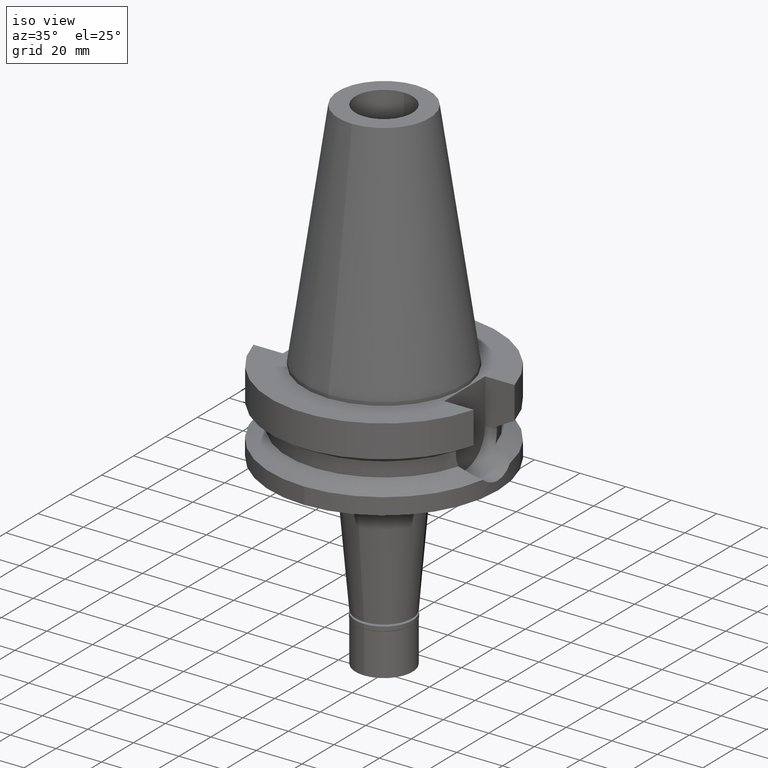
[diagram: clean part render]
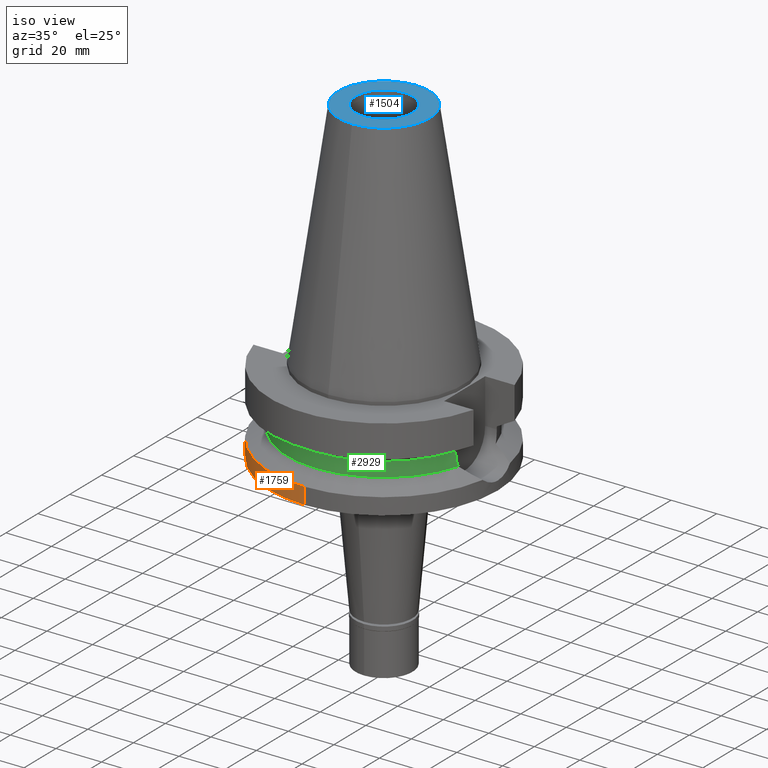
[diagram: same view with three faces highlighted in distinct colors, each labeled with its STEP entity id]
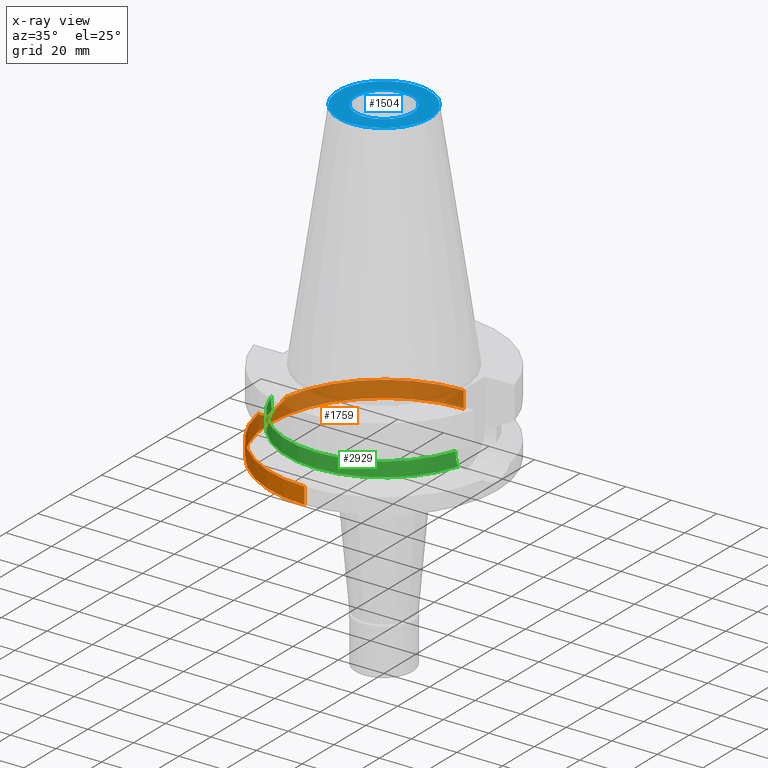
[diagram: x-ray of the same camera — body ghosted, the three highlighted faces saturated]
A machine part, iso view with three faces highlighted in distinct colors.
The next image is the same camera in x-ray (body ghosted, the three faces saturated) — at least one of them is partly hidden behind the body in this view.
Their STEP definitions:

[orange] entity #1759 — the highlighted cylindrical surface (partial cylindrical patch) has radius 50 mm, axis along (0, 0, -1).
#47 = CIRCLE ( 'NONE', #2730, 50.00000000000000000 ) ;
#107 = CARTESIAN_POINT ( 'NONE',  ( -49.78664829406391590, 4.613910500151858329, -33.14313281058769434 ) ) ;
#125 = CARTESIAN_POINT ( 'NONE',  ( -49.64854071968354532, 5.927764156362067105, -32.55772659336890484 ) ) ;
#132 = EDGE_CURVE ( 'NONE', #1580, #335, #47, .T. ) ;
#138 = CARTESIAN_POINT ( 'NONE',  ( -49.38339985389389852, -7.859960507564057508, -31.35852461874956276 ) ) ;
#164 = CARTESIAN_POINT ( 'NONE',  ( -49.96617104581996216, 1.860771087433597426, -33.87050983912064339 ) ) ;
#223 = CIRCLE ( 'NONE', #2709, 50.00000000000000000 ) ;
#266 = CYLINDRICAL_SURFACE ( 'NONE', #2376, 50.00000000000000000 ) ;
#330 = VERTEX_POINT ( 'NONE', #1473 ) ;
#335 = VERTEX_POINT ( 'NONE', #473 ) ;
#339 = CARTESIAN_POINT ( 'NONE',  ( -49.26250064874000145, 8.556052234130000045, -30.73730776426999967 ) ) ;
#342 = CARTESIAN_POINT ( 'NONE',  ( -49.52321424474452982, 6.888848416740521508, -31.99799020663238025 ) ) ;
#350 = DIRECTION ( 'NONE',  ( 0.0000000000000000000, -1.000000000000000000, 0.0000000000000000000 ) ) ;
#356 = CARTESIAN_POINT ( 'NONE',  ( -49.54039264356965333, 6.763925164262532874, -32.07587820822468672 ) ) ;
#363 = CARTESIAN_POINT ( 'NONE',  ( -49.86272838369370675, 3.780421414786224510, -33.45811166536216064 ) ) ;
#375 = CARTESIAN_POINT ( 'NONE',  ( -49.55450159062220905, -6.659714905577538424, -32.13957334196853566 ) ) ;
#402 = CARTESIAN_POINT ( 'NONE',  ( -49.99946306006298613, -0.7715022172390856303, -33.99825010080720489 ) ) ;
#473 = CARTESIAN_POINT ( 'NONE',  ( 0.0000000000000000000, 50.00000000000000000, -30.73730776426999967 ) ) ;
#580 = CARTESIAN_POINT ( 'NONE',  ( -49.45233892297569156, 7.380538404402726016, -31.67091163835234724 ) ) ;
#586 = CARTESIAN_POINT ( 'NONE',  ( -49.72632807619970663, 5.226216969083754549, -32.89072053926888373 ) ) ;
#602 = CARTESIAN_POINT ( 'NONE',  ( -49.86808978796835845, -3.630590269449405660, -33.47804037524767296 ) ) ;
#617 = CARTESIAN_POINT ( 'NONE',  ( -49.59474392502836082, -6.354017035980056072, -32.31992421982980090 ) ) ;
#629 = CARTESIAN_POINT ( 'NONE',  ( -49.79238540805609148, 4.551552570675347908, -33.16690600826707680 ) ) ;
#746 = EDGE_LOOP ( 'NONE', ( #2760, #1280, #2161, #2471, #1073, #2567 ) ) ;
#754 = DIRECTION ( 'NONE',  ( -0.9852500129747439050, 0.1711210446826074982, 0.0000000000000000000 ) ) ;
#759 = LINE ( 'NONE', #1041, #1777 ) ;
#771 = DIRECTION ( 'NONE',  ( 0.0000000000000000000, 0.0000000000000000000, -1.000000000000000000 ) ) ;
#772 = DIRECTION ( 'NONE',  ( 0.0000000000000000000, 0.0000000000000000000, -1.000000000000000000 ) ) ;
#832 = DIRECTION ( 'NONE',  ( 0.0000000000000000000, 0.0000000000000000000, -1.000000000000000000 ) ) ;
#846 = CARTESIAN_POINT ( 'NONE',  ( -49.91456184022994336, 3.009912612553126365, -33.66672019711109698 ) ) ;
#847 = CARTESIAN_POINT ( 'NONE',  ( 0.0000000000000000000, 2.603354165626999772E-14, -38.00000000000000000 ) ) ;
#854 = CARTESIAN_POINT ( 'NONE',  ( -49.55459116603866931, 6.659034255554679760, -32.13998582157688588 ) ) ;
#861 = CARTESIAN_POINT ( 'NONE',  ( -49.66476941512936349, -5.782036373070586599, -32.62728206446514179 ) ) ;
#865 = VERTEX_POINT ( 'NONE', #3150 ) ;
#873 = CARTESIAN_POINT ( 'NONE',  ( -49.99976427569689008, 0.1346550322819368706, -33.99944266756994438 ) ) ;
#876 = DIRECTION ( 'NONE',  ( 0.0000000000000000000, 0.0000000000000000000, 1.000000000000000000 ) ) ;
#997 = VECTOR ( 'NONE', #3154, 1000.000000000000000 ) ;
#1041 = CARTESIAN_POINT ( 'NONE',  ( 0.0000000000000000000, -50.00000000000000000, -30.73730776426999967 ) ) ;
#1073 = ORIENTED_EDGE ( 'NONE', *, *, #2001, .T. ) ;
#1094 = CARTESIAN_POINT ( 'NONE',  ( -49.60485552015989441, 6.284036339748498179, -32.36641612832104897 ) ) ;
#1110 = CARTESIAN_POINT ( 'NONE',  ( -49.79726298221350334, -4.497969784497271917, -33.18710451704880882 ) ) ;
#1135 = EDGE_CURVE ( 'NONE', #1580, #1515, #2974, .T. ) ;
#1136 = CARTESIAN_POINT ( 'NONE',  ( -49.99987539844456563, 0.06471233008353578786, -33.99985817506609465 ) ) ;
#1187 = VERTEX_POINT ( 'NONE', #1612 ) ;
#1201 = FACE_OUTER_BOUND ( 'NONE', #746, .T. ) ;
#1280 = ORIENTED_EDGE ( 'NONE', *, *, #1795, .T. ) ;
#1311 = CARTESIAN_POINT ( 'NONE',  ( -49.47536490217663641, 7.224629093708621497, -31.77824543087361775 ) ) ;
#1327 = EDGE_CURVE ( 'NONE', #330, #1187, #759, .T. ) ;
#1348 = CARTESIAN_POINT ( 'NONE',  ( -49.97901728448092484, 1.478784522109531707, -33.92030068179852265 ) ) ;
#1361 = CARTESIAN_POINT ( 'NONE',  ( -49.75881049646773135, -4.916384288912260203, -33.02774073452124526 ) ) ;
#1437 = LINE ( 'NONE', #1734, #997 ) ;
#1473 = CARTESIAN_POINT ( 'NONE',  ( 0.0000000000000000000, -50.00000000000000000, -30.73730776426999967 ) ) ;
#1475 = CARTESIAN_POINT ( 'NONE',  ( 0.0000000000000000000, 0.0000000000000000000, -30.73730776426999967 ) ) ;
#1515 = VERTEX_POINT ( 'NONE', #2029 ) ;
#1569 = CARTESIAN_POINT ( 'NONE',  ( -49.56430444522951717, -6.586414376831352335, -32.18371255699232591 ) ) ;
#1576 = CARTESIAN_POINT ( 'NONE',  ( -49.37873628750507038, 7.862865054453529012, -31.32131105113684200 ) ) ;
#1580 = VERTEX_POINT ( 'NONE', #339 ) ;
#1583 = CARTESIAN_POINT ( 'NONE',  ( -49.84684500848175759, -3.916667035535634778, -33.39142683437316350 ) ) ;
#1597 = CARTESIAN_POINT ( 'NONE',  ( -49.55690416619698624, -6.641812944421465303, -32.15040284410981997 ) ) ;
#1612 = CARTESIAN_POINT ( 'NONE',  ( 0.0000000000000000000, -50.00000000000000000, -38.00000000000000000 ) ) ;
#1625 = CARTESIAN_POINT ( 'NONE',  ( -49.81922182411696554, -4.249229465390943261, -33.27783150493217335 ) ) ;
#1627 = DIRECTION ( 'NONE',  ( 0.0000000000000000000, 1.000000000000000000, 0.0000000000000000000 ) ) ;
#1734 = CARTESIAN_POINT ( 'NONE',  ( 0.0000000000000000000, 50.00000000000000000, -30.73730776426999967 ) ) ;
#1759 = ADVANCED_FACE ( 'NONE', ( #1201 ), #266, .T. ) ;
#1777 = VECTOR ( 'NONE', #2243, 1000.000000000000000 ) ;
#1794 = CARTESIAN_POINT ( 'NONE',  ( 0.0000000000000000000, 0.0000000000000000000, -30.73730776426999967 ) ) ;
#1795 = EDGE_CURVE ( 'NONE', #335, #865, #1437, .T. ) ;
#1806 = CARTESIAN_POINT ( 'NONE',  ( -49.55616206047340455, 6.647337481956130389, -32.14706538258206336 ) ) ;
#1812 = CARTESIAN_POINT ( 'NONE',  ( -49.75270328082169158, 4.966869615369787994, -33.00164743279194113 ) ) ;
#1822 = CARTESIAN_POINT ( 'NONE',  ( -49.26250064874000145, 8.556052234130000045, -30.73730776426999967 ) ) ;
#1827 = CARTESIAN_POINT ( 'NONE',  ( -49.78958333496276367, 4.582079185197277305, -33.15529795784215139 ) ) ;
#1839 = CARTESIAN_POINT ( 'NONE',  ( -49.90733636603075496, -3.057819790160428486, -33.63716536786206035 ) ) ;
#1868 = CARTESIAN_POINT ( 'NONE',  ( -49.99991791986946055, -0.006537551776600584140, -34.00001924552420718 ) ) ;
#1924 = CIRCLE ( 'NONE', #2339, 50.00000000000000000 ) ;
#2001 = EDGE_CURVE ( 'NONE', #330, #1515, #1924, .T. ) ;
#2029 = CARTESIAN_POINT ( 'NONE',  ( -49.26250064874000145, -8.556052234130000045, -30.73730776426999967 ) ) ;
#2048 = CARTESIAN_POINT ( 'NONE',  ( -49.50764152204421009, 6.999347376452528913, -31.92681436807204420 ) ) ;
#2069 = CARTESIAN_POINT ( 'NONE',  ( -49.79153171028200120, 4.560873024813813181, -33.16337030010782172 ) ) ;
#2083 = CARTESIAN_POINT ( 'NONE',  ( -49.99175139766879994, 0.9099257523849696438, -33.96915581919262905 ) ) ;
#2097 = CARTESIAN_POINT ( 'NONE',  ( -49.99991544254299214, 0.01811622124039275958, -34.00000835048389547 ) ) ;
#2110 = CARTESIAN_POINT ( 'NONE',  ( -49.98172608569569775, -1.530333885347092249, -33.93210656442938244 ) ) ;
#2124 = CARTESIAN_POINT ( 'NONE',  ( -49.77971251986019752, 4.688336494887897388, -33.11434920823113970 ) ) ;
#2161 = ORIENTED_EDGE ( 'NONE', *, *, #2216, .T. ) ;
#2216 = EDGE_CURVE ( 'NONE', #865, #1187, #223, .T. ) ;
#2237 = CARTESIAN_POINT ( 'NONE',  ( 0.0000000000000000000, 2.603354165626999772E-14, 112.5799999999999983 ) ) ;
#2243 = DIRECTION ( 'NONE',  ( 0.0000000000000000000, -2.054527022025999694E-14, -1.000000000000000000 ) ) ;
#2292 = CARTESIAN_POINT ( 'NONE',  ( -49.55575338765565618, 6.650381862284276302, -32.14522381131517648 ) ) ;
#2312 = CARTESIAN_POINT ( 'NONE',  ( -49.76549158969386610, 4.837787273053227644, -33.05517441473079998 ) ) ;
#2324 = CARTESIAN_POINT ( 'NONE',  ( -49.54873439856758921, 6.702489503328191489, -32.11356988446727456 ) ) ;
#2330 = CARTESIAN_POINT ( 'NONE',  ( -49.99914759308546763, 0.2981871576952797587, -33.99713586476229921 ) ) ;
#2339 = AXIS2_PLACEMENT_3D ( 'NONE', #1794, #832, #350 ) ;
#2345 = CARTESIAN_POINT ( 'NONE',  ( -49.72371407447570846, -5.259692327770442155, -32.88064062378568764 ) ) ;
#2361 = CARTESIAN_POINT ( 'NONE',  ( -49.79187844916059191, -4.557097522337056894, -33.16480428347131237 ) ) ;
#2376 = AXIS2_PLACEMENT_3D ( 'NONE', #2237, #771, #2657 ) ;
#2471 = ORIENTED_EDGE ( 'NONE', *, *, #1327, .F. ) ;
#2564 = CARTESIAN_POINT ( 'NONE',  ( -49.48054239214800276, -7.209678475161444666, -31.80600190331338339 ) ) ;
#2567 = ORIENTED_EDGE ( 'NONE', *, *, #1135, .F. ) ;
#2579 = CARTESIAN_POINT ( 'NONE',  ( -49.99648464306181239, 0.6265222745850934638, -33.98712896361405456 ) ) ;
#2594 = CARTESIAN_POINT ( 'NONE',  ( -49.55541775294197748, -6.652895017515501053, -32.14370409858756972 ) ) ;
#2608 = CARTESIAN_POINT ( 'NONE',  ( -49.79403732953942097, -4.533449701752446437, -33.17374706985688704 ) ) ;
#2622 = CARTESIAN_POINT ( 'NONE',  ( -49.64407119095420740, -5.957371484804706796, -32.53737939987783534 ) ) ;
#2657 = DIRECTION ( 'NONE',  ( 0.0000000000000000000, -1.000000000000000000, 0.0000000000000000000 ) ) ;
#2709 = AXIS2_PLACEMENT_3D ( 'NONE', #847, #876, #1627 ) ;
#2730 = AXIS2_PLACEMENT_3D ( 'NONE', #1475, #772, #754 ) ;
#2760 = ORIENTED_EDGE ( 'NONE', *, *, #132, .T. ) ;
#2806 = CARTESIAN_POINT ( 'NONE',  ( -49.80470082986035862, -4.415127358043828387, -33.21787507971411202 ) ) ;
#2815 = CARTESIAN_POINT ( 'NONE',  ( -49.32363493336769267, 8.204064231503906512, -31.05143429596260063 ) ) ;
#2821 = CARTESIAN_POINT ( 'NONE',  ( -49.92917677685785094, -2.675161509789741210, -33.72443551030449527 ) ) ;
#2834 = CARTESIAN_POINT ( 'NONE',  ( -49.61144884810192224, -6.221598463117609334, -32.39385426421536351 ) ) ;
#2847 = CARTESIAN_POINT ( 'NONE',  ( -49.26250064874000145, -8.556052234130000045, -30.73730776426999967 ) ) ;
#2859 = CARTESIAN_POINT ( 'NONE',  ( -49.57456578272631020, -6.508895975426902680, -32.22977460777229908 ) ) ;
#2974 = B_SPLINE_CURVE_WITH_KNOTS ( 'NONE', 3,
 ( #1822, #2815, #1576, #580, #1311, #2048, #342, #356, #2324, #3072, #854, #2292, #1806, #1094, #125, #3061, #586, #1812, #2312, #2124, #107, #1827, #2069, #629, #363, #846, #164, #1348, #2083, #2579, #2330, #873, #1136, #2097, #1868, #402, #2110, #2821, #1839, #602, #1583, #1625, #2806, #1110, #2608, #2361, #3076, #1361, #2345, #861, #2622, #2834, #617, #2859, #1569, #3102, #1597, #2594, #375, #2564, #138, #2847 ),
 .UNSPECIFIED., .F., .F.,
 ( 4, 2, 2, 1, 1, 1, 1, 2, 2, 2, 2, 1, 1, 1, 2, 2, 2, 2, 1, 1, 1, 2, 2, 2, 2, 1, 1, 1, 1, 2, 2, 2, 2, 1, 1, 1, 1, 2, 2, 4 ),
 ( 0.0000000000000000000, 0.06249999999998548383, 0.09374999999997803146, 0.1093749999999746175, 0.1171874999999732714, 0.1210937499999728550, 0.1230468749999726608, 0.1240234374999725497, 0.1249999999999724387, 0.1874999999999642508, 0.2187499999999600875, 0.2343749999999578670, 0.2421874999999569511, 0.2460937499999567846, 0.2480468749999568123, 0.2499999999999568678, 0.3749999999999633071, 0.4374999999999663602, 0.4687499999999679701, 0.4843749999999687472, 0.4921874999999691913, 0.4960937499999693578, 0.4999999999999695799, 0.6249999999999756861, 0.6874999999999789058, 0.7187499999999804601, 0.7343749999999813483, 0.7421874999999815703, 0.7460937499999819034, 0.7480468749999820144, 0.7499999999999821254, 0.8124999999999786837, 0.8437499999999770184, 0.8593749999999761302, 0.8671874999999756861, 0.8710937499999755751, 0.8730468749999757971, 0.8740234374999757971, 0.8749999999999756861, 1.000000000000000000 ),
 .UNSPECIFIED. ) ;
#3061 = CARTESIAN_POINT ( 'NONE',  ( -49.70767982394824713, 5.400694701760426319, -32.81160474458827281 ) ) ;
#3072 = CARTESIAN_POINT ( 'NONE',  ( -49.55284341496288647, 6.672031590331911843, -32.13210701957385851 ) ) ;
#3076 = CARTESIAN_POINT ( 'NONE',  ( -49.79067241352569795, -4.570248117196485715, -33.15980675039627812 ) ) ;
#3102 = CARTESIAN_POINT ( 'NONE',  ( -49.55913070989469560, -6.625190947519783435, -32.16043313552546579 ) ) ;
#3150 = CARTESIAN_POINT ( 'NONE',  ( 0.0000000000000000000, 50.00000000000000000, -38.00000000000000000 ) ) ;
#3154 = DIRECTION ( 'NONE',  ( 0.0000000000000000000, 2.152361642122000014E-14, -1.000000000000000000 ) ) ;

[blue] entity #1504 — the highlighted planar face has unit normal (0, 0, -1).
#85 = EDGE_CURVE ( 'NONE', #1809, #3093, #1423, .T. ) ;
#98 = CIRCLE ( 'NONE', #1888, 20.07942971896000017 ) ;
#162 = EDGE_CURVE ( 'NONE', #2334, #2147, #98, .T. ) ;
#224 = CARTESIAN_POINT ( 'NONE',  ( 0.0000000000000000000, 12.50000000000000000, 101.7999999999999972 ) ) ;
#236 = AXIS2_PLACEMENT_3D ( 'NONE', #1526, #303, #1057 ) ;
#240 = CIRCLE ( 'NONE', #2349, 12.50000000000000000 ) ;
#295 = ORIENTED_EDGE ( 'NONE', *, *, #162, .F. ) ;
#303 = DIRECTION ( 'NONE',  ( 0.0000000000000000000, 0.0000000000000000000, -1.000000000000000000 ) ) ;
#480 = EDGE_CURVE ( 'NONE', #3093, #1809, #240, .T. ) ;
#543 = PLANE ( 'NONE',  #236 ) ;
#697 = EDGE_CURVE ( 'NONE', #2147, #2334, #967, .T. ) ;
#745 = FACE_OUTER_BOUND ( 'NONE', #1157, .T. ) ;
#830 = CARTESIAN_POINT ( 'NONE',  ( 0.0000000000000000000, 2.603354165626999772E-14, 101.7999999999999972 ) ) ;
#967 = CIRCLE ( 'NONE', #2772, 20.07942971896000017 ) ;
#1035 = CARTESIAN_POINT ( 'NONE',  ( 0.0000000000000000000, -20.07942971896000017, 101.7999999999999972 ) ) ;
#1057 = DIRECTION ( 'NONE',  ( 0.0000000000000000000, -1.000000000000000000, 0.0000000000000000000 ) ) ;
#1157 = EDGE_LOOP ( 'NONE', ( #295, #3049 ) ) ;
#1221 = CARTESIAN_POINT ( 'NONE',  ( 0.0000000000000000000, 2.603354165626999772E-14, 101.7999999999999972 ) ) ;
#1257 = DIRECTION ( 'NONE',  ( 0.0000000000000000000, 0.0000000000000000000, -1.000000000000000000 ) ) ;
#1423 = CIRCLE ( 'NONE', #2146, 12.50000000000000000 ) ;
#1453 = ORIENTED_EDGE ( 'NONE', *, *, #480, .F. ) ;
#1504 = ADVANCED_FACE ( 'NONE', ( #745, #2762 ), #543, .F. ) ;
#1526 = CARTESIAN_POINT ( 'NONE',  ( 0.0000000000000000000, 2.471337240678999545E-14, 101.7999999999999972 ) ) ;
#1556 = ORIENTED_EDGE ( 'NONE', *, *, #85, .F. ) ;
#1610 = CARTESIAN_POINT ( 'NONE',  ( 0.0000000000000000000, 1.847992019912999597E-14, 101.7999999999999972 ) ) ;
#1624 = DIRECTION ( 'NONE',  ( 0.0000000000000000000, -1.000000000000000000, 0.0000000000000000000 ) ) ;
#1716 = CARTESIAN_POINT ( 'NONE',  ( 0.0000000000000000000, 20.07942971896000017, 101.7999999999999972 ) ) ;
#1809 = VERTEX_POINT ( 'NONE', #2408 ) ;
#1888 = AXIS2_PLACEMENT_3D ( 'NONE', #2728, #1257, #2983 ) ;
#1982 = DIRECTION ( 'NONE',  ( 0.0000000000000000000, 0.0000000000000000000, 1.000000000000000000 ) ) ;
#2146 = AXIS2_PLACEMENT_3D ( 'NONE', #1221, #1982, #3192 ) ;
#2147 = VERTEX_POINT ( 'NONE', #1035 ) ;
#2334 = VERTEX_POINT ( 'NONE', #1716 ) ;
#2349 = AXIS2_PLACEMENT_3D ( 'NONE', #830, #2820, #2562 ) ;
#2408 = CARTESIAN_POINT ( 'NONE',  ( 0.0000000000000000000, -12.50000000000000000, 101.7999999999999972 ) ) ;
#2545 = EDGE_LOOP ( 'NONE', ( #1453, #1556 ) ) ;
#2562 = DIRECTION ( 'NONE',  ( 0.0000000000000000000, 1.000000000000000000, 0.0000000000000000000 ) ) ;
#2728 = CARTESIAN_POINT ( 'NONE',  ( 0.0000000000000000000, 1.847992019912999597E-14, 101.7999999999999972 ) ) ;
#2762 = FACE_BOUND ( 'NONE', #2545, .T. ) ;
#2772 = AXIS2_PLACEMENT_3D ( 'NONE', #1610, #3129, #1624 ) ;
#2820 = DIRECTION ( 'NONE',  ( 0.0000000000000000000, 0.0000000000000000000, 1.000000000000000000 ) ) ;
#2983 = DIRECTION ( 'NONE',  ( 0.0000000000000000000, 1.000000000000000000, 0.0000000000000000000 ) ) ;
#3049 = ORIENTED_EDGE ( 'NONE', *, *, #697, .F. ) ;
#3093 = VERTEX_POINT ( 'NONE', #224 ) ;
#3129 = DIRECTION ( 'NONE',  ( 0.0000000000000000000, 0.0000000000000000000, -1.000000000000000000 ) ) ;
#3192 = DIRECTION ( 'NONE',  ( 0.0000000000000000000, -1.000000000000000000, 0.0000000000000000000 ) ) ;

[green] entity #2929 — the highlighted cylindrical surface (partial cylindrical patch) has radius 42.5 mm, axis along (0, 0, -1).
#28 = VERTEX_POINT ( 'NONE', #1005 ) ;
#33 = B_SPLINE_CURVE_WITH_KNOTS ( 'NONE', 3,
 ( #2142, #3088, #2595, #2835, #151, #603, #2362, #2861, #646, #1138, #1168, #2822, #890, #3119 ),
 .UNSPECIFIED., .F., .F.,
 ( 4, 2, 2, 1, 1, 2, 2, 4 ),
 ( 0.0000000000000000000, 0.2500000000000049960, 0.3750000000000074940, 0.4375000000000087708, 0.4687500000000102141, 0.4843750000000111022, 0.5000000000000121014, 1.000000000000000000 ),
 .UNSPECIFIED. ) ;
#139 = CARTESIAN_POINT ( 'NONE',  ( -40.61156370412558658, -12.52823179351252136, -24.00849701668701641 ) ) ;
#151 = CARTESIAN_POINT ( 'NONE',  ( 40.54944527668359200, -12.72806992640919255, -22.93044913861063705 ) ) ;
#169 = DIRECTION ( 'NONE',  ( 0.0000000000000000000, -1.000000000000000000, 0.0000000000000000000 ) ) ;
#318 = ORIENTED_EDGE ( 'NONE', *, *, #2241, .F. ) ;
#368 = EDGE_CURVE ( 'NONE', #28, #1691, #2495, .T. ) ;
#387 = DIRECTION ( 'NONE',  ( 0.9531960443486575674, -0.3023529411764863672, 0.0000000000000000000 ) ) ;
#392 = CARTESIAN_POINT ( 'NONE',  ( -40.51083188481999997, -12.84999999999999964, -21.14999999999999858 ) ) ;
#404 = CARTESIAN_POINT ( 'NONE',  ( -40.60092238249551144, -12.56264134811935307, -23.85247231211815233 ) ) ;
#425 = DIRECTION ( 'NONE',  ( 0.0000000000000000000, 0.0000000000000000000, 1.000000000000000000 ) ) ;
#446 = CARTESIAN_POINT ( 'NONE',  ( 0.0000000000000000000, 2.603354165626999772E-14, 112.5799999999999983 ) ) ;
#569 = DIRECTION ( 'NONE',  ( -9.439279425639246867E-07, 2.975824015781078655E-06, 0.9999999999951266760 ) ) ;
#576 = CARTESIAN_POINT ( 'NONE',  ( 0.0000000000000000000, 0.0000000000000000000, -26.40718074535000426 ) ) ;
#603 = CARTESIAN_POINT ( 'NONE',  ( 40.56599387319658234, -12.67510252611517352, -23.26591392763370081 ) ) ;
#631 = CARTESIAN_POINT ( 'NONE',  ( -40.62482419419580992, -12.48526689985903282, -24.19323376023648464 ) ) ;
#646 = CARTESIAN_POINT ( 'NONE',  ( 40.59187978545035236, -12.59183662339848375, -23.71299885588245715 ) ) ;
#663 = AXIS2_PLACEMENT_3D ( 'NONE', #446, #1622, #1159 ) ;
#664 = CARTESIAN_POINT ( 'NONE',  ( 40.85052569294000335, -11.72538061688000077, -26.40718074535000426 ) ) ;
#815 = CARTESIAN_POINT ( 'NONE',  ( -40.51083188481999997, -12.84999999999999964, -21.14999999999999858 ) ) ;
#862 = CARTESIAN_POINT ( 'NONE',  ( -40.68244087361635764, -12.29668167669939471, -24.88705339703176023 ) ) ;
#885 = CYLINDRICAL_SURFACE ( 'NONE', #663, 42.50000000000000000 ) ;
#890 = CARTESIAN_POINT ( 'NONE',  ( 40.73816527417317701, -12.11683760438691948, -25.53409260248793800 ) ) ;
#994 = B_SPLINE_CURVE_WITH_KNOTS ( 'NONE', 3,
 ( #1856, #1125, #2346, #862, #1111, #2624, #631, #139, #1840, #1152, #404, #2642, #2098, #392 ),
 .UNSPECIFIED., .F., .F.,
 ( 4, 2, 2, 1, 1, 2, 2, 4 ),
 ( 0.0000000000000000000, 0.2500000000000008327, 0.3750000000000014433, 0.4375000000000016653, 0.4687500000000019429, 0.4843750000000022204, 0.5000000000000024425, 1.000000000000000000 ),
 .UNSPECIFIED. ) ;
#1005 = CARTESIAN_POINT ( 'NONE',  ( 40.51083188481999997, -12.84999999999999964, -19.99281925464999787 ) ) ;
#1111 = CARTESIAN_POINT ( 'NONE',  ( -40.66327158113942630, -12.35978760560162470, -24.67233268227303356 ) ) ;
#1125 = CARTESIAN_POINT ( 'NONE',  ( -40.79434512273083868, -11.92111036772907084, -25.97063387014989999 ) ) ;
#1138 = CARTESIAN_POINT ( 'NONE',  ( 40.59544233053302520, -12.58034074061086294, -23.76884316745783465 ) ) ;
#1152 = CARTESIAN_POINT ( 'NONE',  ( -40.60256585323735123, -12.55733039765366676, -23.87702712880927791 ) ) ;
#1159 = DIRECTION ( 'NONE',  ( 0.0000000000000000000, -1.000000000000000000, 0.0000000000000000000 ) ) ;
#1168 = CARTESIAN_POINT ( 'NONE',  ( 40.59736410791902017, -12.57413583718784800, -23.79845734576946725 ) ) ;
#1407 = CARTESIAN_POINT ( 'NONE',  ( 40.51083188481999997, -12.84999999999999964, -21.14999999999999858 ) ) ;
#1439 = ORIENTED_EDGE ( 'NONE', *, *, #368, .F. ) ;
#1524 = EDGE_CURVE ( 'NONE', #2994, #1669, #1617, .T. ) ;
#1617 = CIRCLE ( 'NONE', #2038, 42.50000000000000000 ) ;
#1622 = DIRECTION ( 'NONE',  ( 0.0000000000000000000, 0.0000000000000000000, -1.000000000000000000 ) ) ;
#1669 = VERTEX_POINT ( 'NONE', #664 ) ;
#1691 = VERTEX_POINT ( 'NONE', #1407 ) ;
#1749 = CARTESIAN_POINT ( 'NONE',  ( -40.51083188481999997, -12.84999999999999964, -21.14999999999999858 ) ) ;
#1840 = CARTESIAN_POINT ( 'NONE',  ( -40.60613153987031154, -12.54580241307099087, -23.92958009225868565 ) ) ;
#1856 = CARTESIAN_POINT ( 'NONE',  ( -40.85052569294000335, -11.72538061688000077, -26.40718074535000426 ) ) ;
#1899 = AXIS2_PLACEMENT_3D ( 'NONE', #2307, #2605, #387 ) ;
#1930 = CARTESIAN_POINT ( 'NONE',  ( -40.85052569294000335, -11.72538061688000077, -26.40718074535000426 ) ) ;
#2038 = AXIS2_PLACEMENT_3D ( 'NONE', #576, #425, #169 ) ;
#2040 = LINE ( 'NONE', #815, #2964 ) ;
#2051 = VERTEX_POINT ( 'NONE', #1749 ) ;
#2098 = CARTESIAN_POINT ( 'NONE',  ( -40.51083188482000708, -12.84999999999998543, -22.03305700389009658 ) ) ;
#2142 = CARTESIAN_POINT ( 'NONE',  ( 40.51083188481999997, -12.84999999999999964, -21.14999999999999858 ) ) ;
#2168 = EDGE_CURVE ( 'NONE', #2051, #2222, #2040, .T. ) ;
#2182 = EDGE_CURVE ( 'NONE', #1691, #1669, #33, .T. ) ;
#2214 = CIRCLE ( 'NONE', #1899, 42.50000000000002132 ) ;
#2222 = VERTEX_POINT ( 'NONE', #2876 ) ;
#2241 = EDGE_CURVE ( 'NONE', #2994, #2051, #994, .T. ) ;
#2307 = CARTESIAN_POINT ( 'NONE',  ( 0.0000000000000000000, 1.006319759053999930E-14, -19.99281925464999787 ) ) ;
#2310 = ORIENTED_EDGE ( 'NONE', *, *, #1524, .T. ) ;
#2323 = ORIENTED_EDGE ( 'NONE', *, *, #2168, .F. ) ;
#2346 = CARTESIAN_POINT ( 'NONE',  ( -40.74530134662378345, -12.08735857077544296, -25.53452462450242066 ) ) ;
#2357 = FACE_OUTER_BOUND ( 'NONE', #2440, .T. ) ;
#2362 = CARTESIAN_POINT ( 'NONE',  ( 40.57495769630776294, -12.64634707790186319, -23.43364513697129325 ) ) ;
#2426 = DIRECTION ( 'NONE',  ( -9.453829082114106617E-07, -2.980410955822033949E-06, -0.9999999999951116880 ) ) ;
#2440 = EDGE_LOOP ( 'NONE', ( #318, #2310, #2825, #1439, #2450, #2323 ) ) ;
#2450 = ORIENTED_EDGE ( 'NONE', *, *, #2811, .T. ) ;
#2495 = LINE ( 'NONE', #2742, #2510 ) ;
#2510 = VECTOR ( 'NONE', #2426, 1000.000000000000114 ) ;
#2595 = CARTESIAN_POINT ( 'NONE',  ( 40.51818681660353860, -12.82722334132538577, -22.03684727484449368 ) ) ;
#2605 = DIRECTION ( 'NONE',  ( 0.0000000000000000000, 0.0000000000000000000, -1.000000000000000000 ) ) ;
#2624 = CARTESIAN_POINT ( 'NONE',  ( -40.63719394021229192, -12.44501252812037251, -24.35255093167537765 ) ) ;
#2642 = CARTESIAN_POINT ( 'NONE',  ( -40.54024919018343809, -12.75863389446587171, -22.93144383366319161 ) ) ;
#2742 = CARTESIAN_POINT ( 'NONE',  ( 40.51083297876999723, -12.84999655120000028, -19.99284572175999841 ) ) ;
#2811 = EDGE_CURVE ( 'NONE', #28, #2222, #2214, .T. ) ;
#2822 = CARTESIAN_POINT ( 'NONE',  ( 40.65435373193400181, -12.39003581045331792, -24.66356197803972350 ) ) ;
#2825 = ORIENTED_EDGE ( 'NONE', *, *, #2182, .F. ) ;
#2835 = CARTESIAN_POINT ( 'NONE',  ( 40.54025161195416871, -12.75732247067935354, -22.70680363674587809 ) ) ;
#2861 = CARTESIAN_POINT ( 'NONE',  ( 40.58662215843323651, -12.60879279856068003, -23.62921822474166689 ) ) ;
#2876 = CARTESIAN_POINT ( 'NONE',  ( -40.51083297709000419, -12.84999655650999806, -19.99284568102999771 ) ) ;
#2929 = ADVANCED_FACE ( 'NONE', ( #2357 ), #885, .T. ) ;
#2964 = VECTOR ( 'NONE', #569, 1000.000000000000114 ) ;
#2994 = VERTEX_POINT ( 'NONE', #1930 ) ;
#3088 = CARTESIAN_POINT ( 'NONE',  ( 40.51083188481999997, -12.85000000000000142, -21.59153118651267889 ) ) ;
#3119 = CARTESIAN_POINT ( 'NONE',  ( 40.85052569294000335, -11.72538061688000077, -26.40718074535000426 ) ) ;